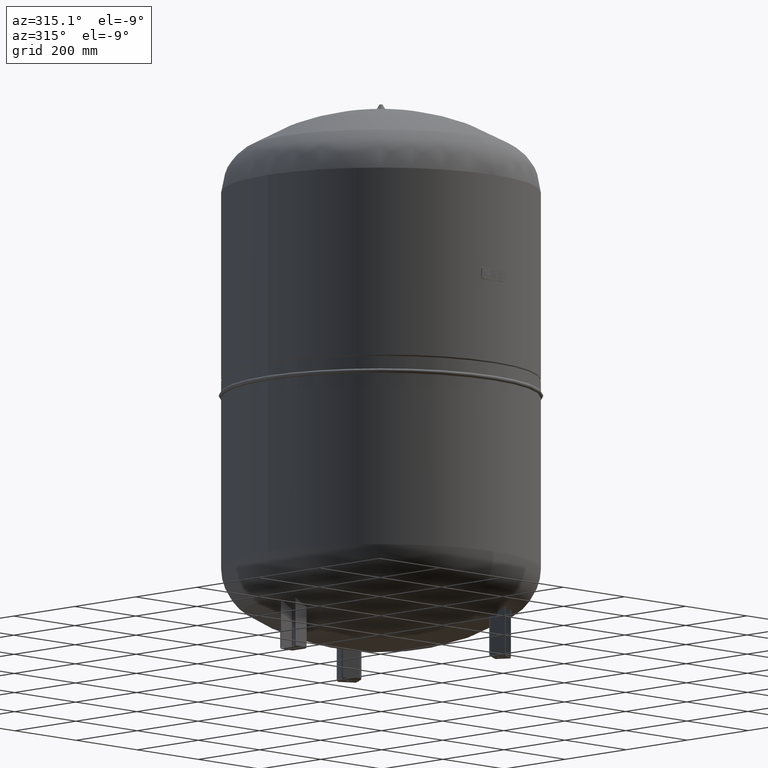
[diagram: clean part render]
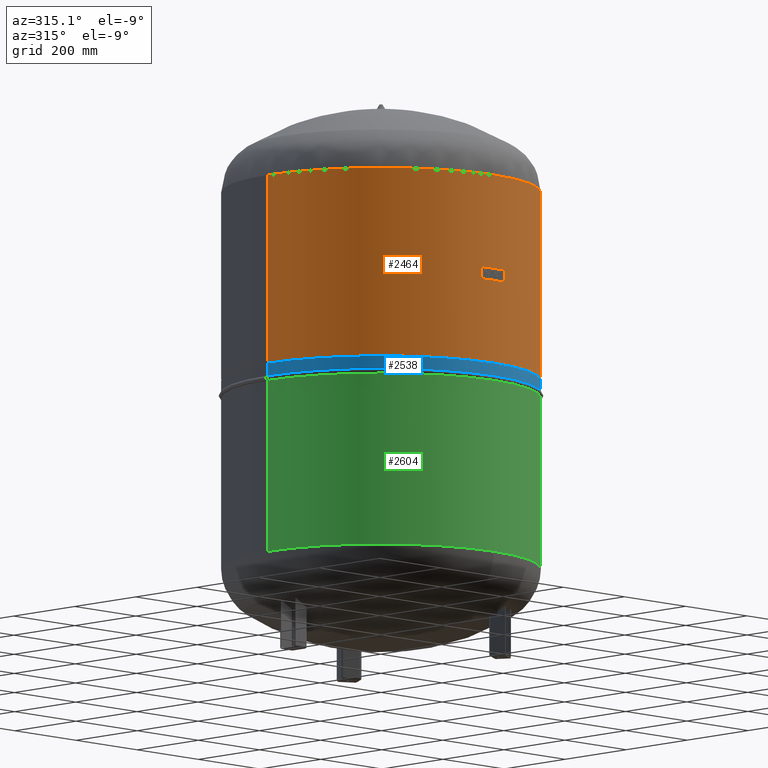
[diagram: same view with three faces highlighted in distinct colors, each labeled with its STEP entity id]
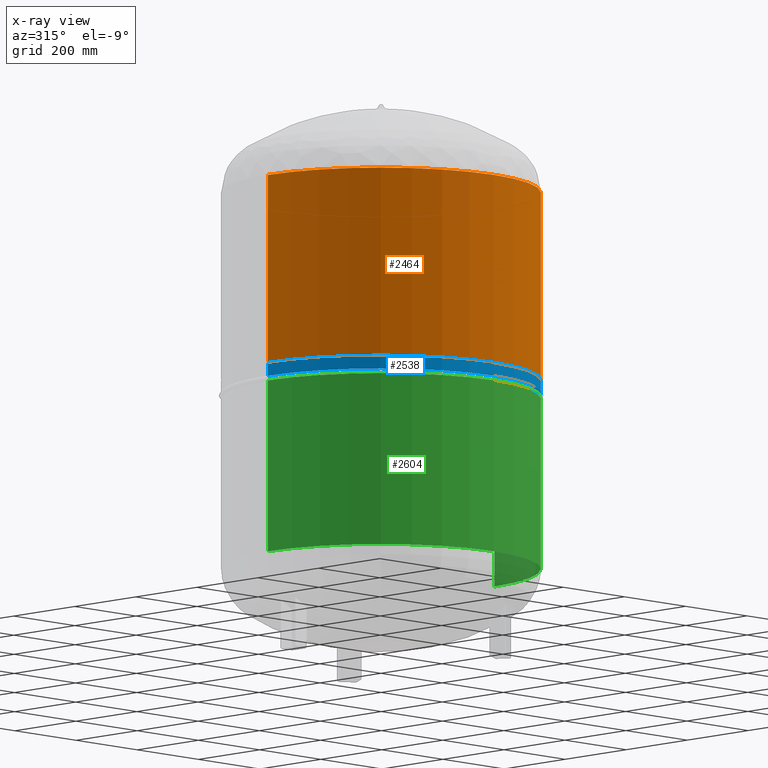
[diagram: x-ray of the same camera — body ghosted, the three highlighted faces saturated]
A machine part, auxiliary view with three faces highlighted in distinct colors.
The next image is the same camera in x-ray (body ghosted, the three faces saturated) — at least one of them is partly hidden behind the body in this view.
Their STEP definitions:

[orange] entity #2464 — the highlighted cylindrical surface (partial cylindrical patch) has radius 370 mm, axis along (-0, 0, 1).
#2423=CARTESIAN_POINT('',(-7.326468E-015,0.0,882.0));
#2424=DIRECTION('',(-3.300211E-017,0.0,1.0));
#2425=DIRECTION('',(1.0,0.0,0.0));
#2426=AXIS2_PLACEMENT_3D('',#2423,#2424,#2425);
#2427=CYLINDRICAL_SURFACE('',#2426,369.999999999999890);
#2428=CARTESIAN_POINT('',(370.0,0.0,1101.0));
#2429=VERTEX_POINT('',#2428);
#2430=CARTESIAN_POINT('',(369.999999999999770,0.0,663.0));
#2431=VERTEX_POINT('',#2430);
#2432=CARTESIAN_POINT('',(370.0,0.0,1101.0));
#2433=DIRECTION('',(0.0,0.0,-1.0));
#2434=VECTOR('',#2433,438.0);
#2435=LINE('',#2432,#2434);
#2436=EDGE_CURVE('',#2429,#2431,#2435,.T.);
#2437=ORIENTED_EDGE('',*,*,#2436,.F.);
#2438=CARTESIAN_POINT('',(-369.999999999999890,-4.531044E-014,1101.0));
#2439=VERTEX_POINT('',#2438);
#2440=CARTESIAN_POINT('',(-1.455393E-014,0.0,1101.0));
#2441=DIRECTION('',(0.0,0.0,1.0));
#2442=DIRECTION('',(1.0,0.0,0.0));
#2443=AXIS2_PLACEMENT_3D('',#2440,#2441,#2442);
#2444=CIRCLE('',#2443,370.0);
#2445=EDGE_CURVE('',#2439,#2429,#2444,.T.);
#2446=ORIENTED_EDGE('',*,*,#2445,.F.);
#2447=CARTESIAN_POINT('',(-369.999999999999770,-4.531044E-014,663.0));
#2448=VERTEX_POINT('',#2447);
#2449=CARTESIAN_POINT('',(-369.999999999999890,-4.531044E-014,1101.0));
#2450=DIRECTION('',(0.0,0.0,-1.0));
#2451=VECTOR('',#2450,438.0);
#2452=LINE('',#2449,#2451);
#2453=EDGE_CURVE('',#2439,#2448,#2452,.T.);
#2454=ORIENTED_EDGE('',*,*,#2453,.T.);
#2455=CARTESIAN_POINT('',(-9.900632E-017,0.0,663.0));
#2456=DIRECTION('',(0.0,0.0,1.0));
#2457=DIRECTION('',(1.0,0.0,0.0));
#2458=AXIS2_PLACEMENT_3D('',#2455,#2456,#2457);
#2459=CIRCLE('',#2458,369.999999999999770);
#2460=EDGE_CURVE('',#2448,#2431,#2459,.T.);
#2461=ORIENTED_EDGE('',*,*,#2460,.T.);
#2462=EDGE_LOOP('',(#2437,#2446,#2454,#2461));
#2463=FACE_OUTER_BOUND('',#2462,.T.);
#2464=ADVANCED_FACE('',(#2463),#2427,.T.);

[blue] entity #2538 — the highlighted cylindrical surface (partial cylindrical patch) has radius 370 mm, axis along (-0, 0, 1).
#2497=CARTESIAN_POINT('',(4.876061E-016,0.0,645.224999999999910));
#2498=DIRECTION('',(-3.300211E-017,0.0,1.0));
#2499=DIRECTION('',(1.0,0.0,0.0));
#2500=AXIS2_PLACEMENT_3D('',#2497,#2498,#2499);
#2501=CYLINDRICAL_SURFACE('',#2500,369.999999999999770);
#2502=CARTESIAN_POINT('',(369.999999999999770,0.0,660.0));
#2503=VERTEX_POINT('',#2502);
#2504=CARTESIAN_POINT('',(369.999999999999770,0.0,630.449999999999930));
#2505=VERTEX_POINT('',#2504);
#2506=CARTESIAN_POINT('',(369.999999999999770,0.0,660.0));
#2507=DIRECTION('',(0.0,0.0,-1.0));
#2508=VECTOR('',#2507,29.550000000000068);
#2509=LINE('',#2506,#2508);
#2510=EDGE_CURVE('',#2503,#2505,#2509,.T.);
#2511=ORIENTED_EDGE('',*,*,#2510,.F.);
#2512=CARTESIAN_POINT('',(-369.999999999999770,-4.531044E-014,660.0));
#2513=VERTEX_POINT('',#2512);
#2514=CARTESIAN_POINT('',(0.0,0.0,660.0));
#2515=DIRECTION('',(0.0,0.0,1.0));
#2516=DIRECTION('',(1.0,0.0,0.0));
#2517=AXIS2_PLACEMENT_3D('',#2514,#2515,#2516);
#2518=CIRCLE('',#2517,369.999999999999770);
#2519=EDGE_CURVE('',#2513,#2503,#2518,.T.);
#2520=ORIENTED_EDGE('',*,*,#2519,.F.);
#2521=CARTESIAN_POINT('',(-369.999999999999770,-4.531044E-014,630.449999999999820));
#2522=VERTEX_POINT('',#2521);
#2523=CARTESIAN_POINT('',(-369.999999999999770,-4.531044E-014,660.0));
#2524=DIRECTION('',(0.0,0.0,-1.0));
#2525=VECTOR('',#2524,29.550000000000182);
#2526=LINE('',#2523,#2525);
#2527=EDGE_CURVE('',#2513,#2522,#2526,.T.);
#2528=ORIENTED_EDGE('',*,*,#2527,.T.);
#2529=CARTESIAN_POINT('',(9.752123E-016,0.0,630.449999999999930));
#2530=DIRECTION('',(0.0,0.0,1.0));
#2531=DIRECTION('',(1.0,0.0,0.0));
#2532=AXIS2_PLACEMENT_3D('',#2529,#2530,#2531);
#2533=CIRCLE('',#2532,369.999999999999770);
#2534=EDGE_CURVE('',#2522,#2505,#2533,.T.);
#2535=ORIENTED_EDGE('',*,*,#2534,.T.);
#2536=EDGE_LOOP('',(#2511,#2520,#2528,#2535));
#2537=FACE_OUTER_BOUND('',#2536,.T.);
#2538=ADVANCED_FACE('',(#2537),#2501,.T.);

[green] entity #2604 — the highlighted cylindrical surface (partial cylindrical patch) has radius 370 mm, axis along (-0, 0, 1).
#2544=CARTESIAN_POINT('',(370.000000000000060,0.0,619.549999999999950));
#2545=VERTEX_POINT('',#2544);
#2554=CARTESIAN_POINT('',(-370.0,-4.531044E-014,619.549999999999950));
#2555=VERTEX_POINT('',#2554);
#2563=CARTESIAN_POINT('',(1.334935E-015,0.0,619.549999999999950));
#2564=DIRECTION('',(0.0,0.0,1.0));
#2565=DIRECTION('',(1.0,0.0,0.0));
#2566=AXIS2_PLACEMENT_3D('',#2563,#2564,#2565);
#2567=CIRCLE('',#2566,370.000000000000060);
#2568=EDGE_CURVE('',#2555,#2545,#2567,.T.);
#2573=CARTESIAN_POINT('',(7.944432E-015,0.0,419.274999999999860));
#2574=DIRECTION('',(-3.300211E-017,0.0,1.0));
#2575=DIRECTION('',(1.0,0.0,0.0));
#2576=AXIS2_PLACEMENT_3D('',#2573,#2574,#2575);
#2577=CYLINDRICAL_SURFACE('',#2576,370.0);
#2578=CARTESIAN_POINT('',(370.0,0.0,218.999999999999890));
#2579=VERTEX_POINT('',#2578);
#2580=CARTESIAN_POINT('',(370.000000000000060,0.0,619.549999999999950));
#2581=DIRECTION('',(0.0,0.0,-1.0));
#2582=VECTOR('',#2581,400.550000000000070);
#2583=LINE('',#2580,#2582);
#2584=EDGE_CURVE('',#2545,#2579,#2583,.T.);
#2585=ORIENTED_EDGE('',*,*,#2584,.F.);
#2586=ORIENTED_EDGE('',*,*,#2568,.F.);
#2587=CARTESIAN_POINT('',(-370.0,-4.531044E-014,218.999999999999860));
#2588=VERTEX_POINT('',#2587);
#2589=CARTESIAN_POINT('',(-370.0,-4.531044E-014,619.549999999999950));
#2590=DIRECTION('',(0.0,0.0,-1.0));
#2591=VECTOR('',#2590,400.550000000000070);
#2592=LINE('',#2589,#2591);
#2593=EDGE_CURVE('',#2555,#2588,#2592,.T.);
#2594=ORIENTED_EDGE('',*,*,#2593,.T.);
#2595=CARTESIAN_POINT('',(1.455393E-014,0.0,218.999999999999830));
#2596=DIRECTION('',(0.0,0.0,1.0));
#2597=DIRECTION('',(1.0,0.0,0.0));
#2598=AXIS2_PLACEMENT_3D('',#2595,#2596,#2597);
#2599=CIRCLE('',#2598,370.0);
#2600=EDGE_CURVE('',#2588,#2579,#2599,.T.);
#2601=ORIENTED_EDGE('',*,*,#2600,.T.);
#2602=EDGE_LOOP('',(#2585,#2586,#2594,#2601));
#2603=FACE_OUTER_BOUND('',#2602,.T.);
#2604=ADVANCED_FACE('',(#2603),#2577,.T.);